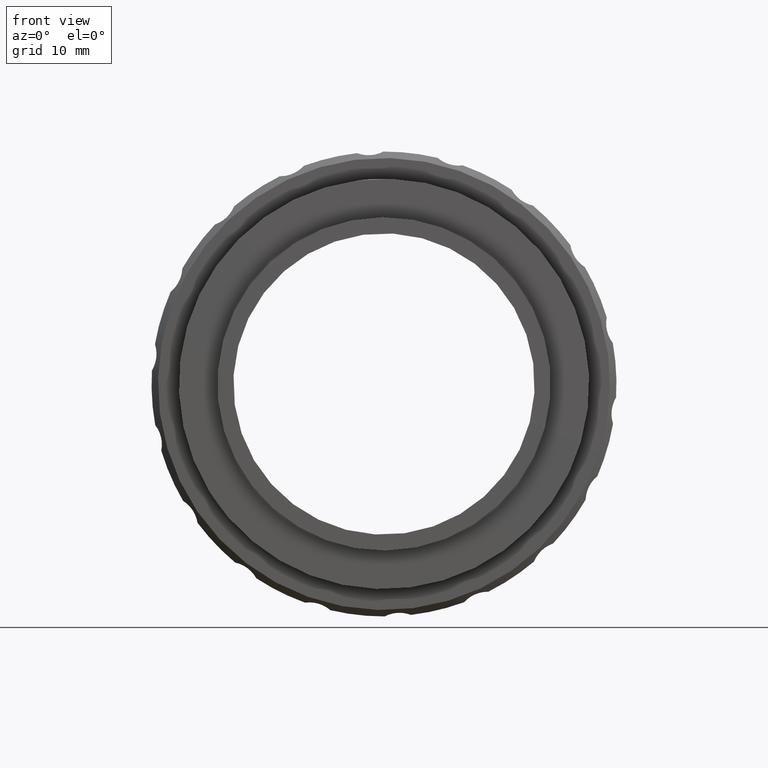
[diagram: clean part render]
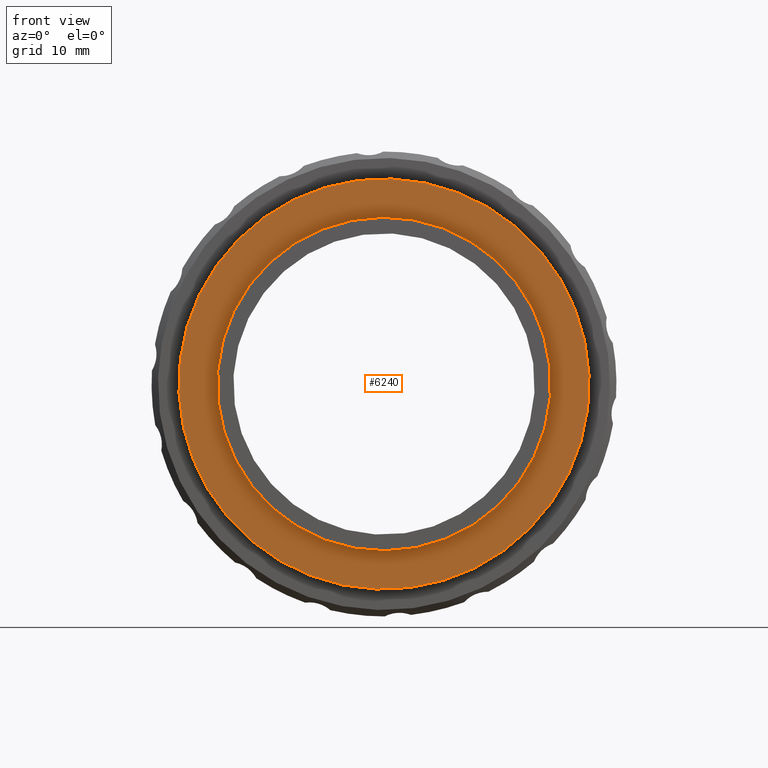
[diagram: same view with one face highlighted and labeled with its STEP entity id]
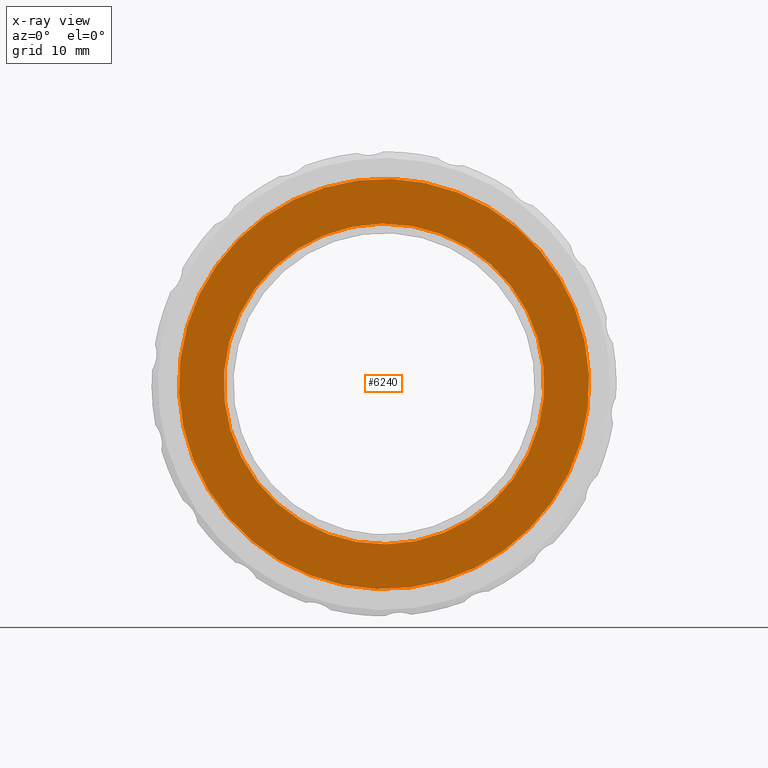
[diagram: x-ray of the same camera — body ghosted, the highlighted face saturated]
A machine part, front view. The second image highlights one B-rep face of the part: STEP entity #6240.
The next image is the same camera in x-ray: the body ghosted, the highlighted face saturated — about 0% of this face is hidden behind the body in this view.
In plain terms, the highlighted planar face has unit normal (0, 1, 0).
Its self-contained STEP definition (entity closure, byte-faithful):
#825 = CARTESIAN_POINT ( 'NONE',  ( 34.77051610874783449, -30.04875568700542132, 30.95238356702144245 ) ) ;
#1075 = AXIS2_PLACEMENT_3D ( 'NONE', #5967, #10007, #3398 ) ;
#1421 = CIRCLE ( 'NONE', #1075, 25.00000000000000000 ) ;
#1696 = CARTESIAN_POINT ( 'NONE',  ( 5.971701014312827738, -30.04875568700542132, 44.90330644533106863 ) ) ;
#2507 = DIRECTION ( 'NONE',  ( -0.8999629717010937391, 0.000000000000000000, 0.4359663399471757628 ) ) ;
#2513 = FACE_OUTER_BOUND ( 'NONE', #5994, .T. ) ;
#2625 = CARTESIAN_POINT ( 'NONE',  ( -16.52737327821451530, -30.04875568700542132, 55.80246494401045965 ) ) ;
#2650 = DIRECTION ( 'NONE',  ( -0.8999629717010937391, 0.000000000000000000, 0.4359663399471757628 ) ) ;
#2704 = CARTESIAN_POINT ( 'NONE',  ( -22.82711408012217191, -30.04875568700542132, 58.85422932364069482 ) ) ;
#3398 = DIRECTION ( 'NONE',  ( -0.8999629717010937391, 0.000000000000000000, 0.4359663399471757628 ) ) ;
#3428 = DIRECTION ( 'NONE',  ( 0.000000000000000000, 1.000000000000000000, 0.000000000000000000 ) ) ;
#3667 = EDGE_CURVE ( 'NONE', #9221, #6733, #1421, .T. ) ;
#3870 = EDGE_CURVE ( 'NONE', #6733, #9221, #4219, .T. ) ;
#4056 = AXIS2_PLACEMENT_3D ( 'NONE', #7442, #4232, #2507 ) ;
#4219 = CIRCLE ( 'NONE', #4056, 25.00000000000000000 ) ;
#4232 = DIRECTION ( 'NONE',  ( 0.000000000000000000, -1.000000000000000000, 0.000000000000000000 ) ) ;
#4754 = AXIS2_PLACEMENT_3D ( 'NONE', #1696, #4986, #2650 ) ;
#4951 = CARTESIAN_POINT ( 'NONE',  ( 19.92262389262244682, -30.04875568700542132, 73.70212153976606828 ) ) ;
#4986 = DIRECTION ( 'NONE',  ( 0.000000000000000000, -1.000000000000000000, 0.000000000000000000 ) ) ;
#5905 = ORIENTED_EDGE ( 'NONE', *, *, #8633, .T. ) ;
#5967 = CARTESIAN_POINT ( 'NONE',  ( 5.971701014312827738, -30.04875568700542132, 44.90330644533106863 ) ) ;
#5994 = EDGE_LOOP ( 'NONE', ( #5905, #6410 ) ) ;
#6240 = ADVANCED_FACE ( 'NONE', ( #7448, #2513 ), #8194, .F. ) ;
#6410 = ORIENTED_EDGE ( 'NONE', *, *, #8484, .T. ) ;
#6453 = CIRCLE ( 'NONE', #6616, 32.00000000000000000 ) ;
#6594 = VERTEX_POINT ( 'NONE', #2704 ) ;
#6616 = AXIS2_PLACEMENT_3D ( 'NONE', #7224, #10465, #8127 ) ;
#6733 = VERTEX_POINT ( 'NONE', #9661 ) ;
#6884 = VERTEX_POINT ( 'NONE', #825 ) ;
#7224 = CARTESIAN_POINT ( 'NONE',  ( 5.971701014312827738, -30.04875568700542132, 44.90330644533106863 ) ) ;
#7442 = CARTESIAN_POINT ( 'NONE',  ( 5.971701014312827738, -30.04875568700542132, 44.90330644533106863 ) ) ;
#7448 = FACE_BOUND ( 'NONE', #8179, .T. ) ;
#7965 = ORIENTED_EDGE ( 'NONE', *, *, #3667, .F. ) ;
#8127 = DIRECTION ( 'NONE',  ( -0.8999629717010937391, 0.000000000000000000, 0.4359663399471757628 ) ) ;
#8179 = EDGE_LOOP ( 'NONE', ( #7965, #8486 ) ) ;
#8194 = PLANE ( 'NONE',  #10370 ) ;
#8295 = DIRECTION ( 'NONE',  ( 0.8999629717010937391, 0.000000000000000000, -0.4359663399471757073 ) ) ;
#8321 = CIRCLE ( 'NONE', #4754, 32.00000000000000000 ) ;
#8484 = EDGE_CURVE ( 'NONE', #6884, #6594, #6453, .T. ) ;
#8486 = ORIENTED_EDGE ( 'NONE', *, *, #3870, .F. ) ;
#8633 = EDGE_CURVE ( 'NONE', #6594, #6884, #8321, .T. ) ;
#9221 = VERTEX_POINT ( 'NONE', #2625 ) ;
#9661 = CARTESIAN_POINT ( 'NONE',  ( 28.47077530684017077, -30.04875568700542132, 34.00414794665167051 ) ) ;
#10007 = DIRECTION ( 'NONE',  ( 0.000000000000000000, -1.000000000000000000, 0.000000000000000000 ) ) ;
#10370 = AXIS2_PLACEMENT_3D ( 'NONE', #4951, #3428, #8295 ) ;
#10465 = DIRECTION ( 'NONE',  ( 0.000000000000000000, -1.000000000000000000, 0.000000000000000000 ) ) ;